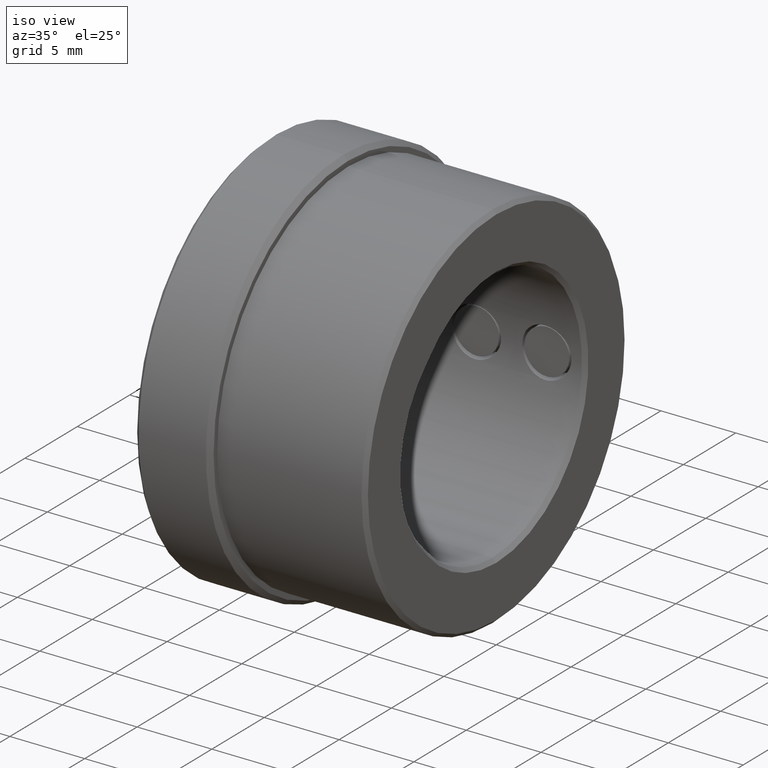
[diagram: clean part render]
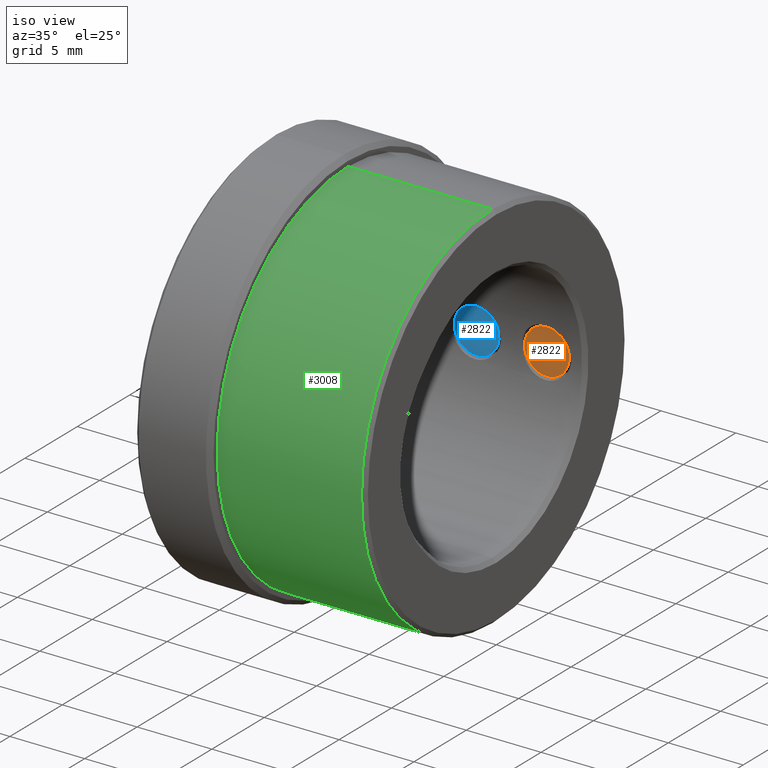
[diagram: same view with three faces highlighted in distinct colors, each labeled with its STEP entity id]
A machine part, iso view with three faces highlighted in distinct colors.
Their STEP definitions:

[orange] entity #2822 — the highlighted planar face has unit normal (0, -1, -0).
#220 = VERTEX_POINT ( 'NONE', #411 ) ;
#269 = EDGE_CURVE ( 'NONE', #4243, #220, #2232, .T. ) ;
#411 = CARTESIAN_POINT ( 'NONE',  ( 0.000000000000000000, -1.000000000000000000, 1.500000000000000222 ) ) ;
#665 = FACE_OUTER_BOUND ( 'NONE', #2574, .T. ) ;
#904 = ORIENTED_EDGE ( 'NONE', *, *, #269, .T. ) ;
#909 = DIRECTION ( 'NONE',  ( 0.000000000000000000, 0.000000000000000000, -1.000000000000000000 ) ) ;
#1053 = DIRECTION ( 'NONE',  ( 0.000000000000000000, 0.000000000000000000, -1.000000000000000000 ) ) ;
#1079 = DIRECTION ( 'NONE',  ( 0.000000000000000000, -0.000000000000000000, -1.000000000000000000 ) ) ;
#1694 = DIRECTION ( 'NONE',  ( 0.000000000000000000, -1.000000000000000000, 0.000000000000000000 ) ) ;
#1799 = CARTESIAN_POINT ( 'NONE',  ( 0.000000000000000000, -1.000000000000000000, 0.000000000000000000 ) ) ;
#1914 = EDGE_CURVE ( 'NONE', #220, #4243, #2678, .T. ) ;
#2059 = PLANE ( 'NONE',  #3816 ) ;
#2081 = AXIS2_PLACEMENT_3D ( 'NONE', #4104, #3754, #909 ) ;
#2232 = CIRCLE ( 'NONE', #2834, 1.500000000000000222 ) ;
#2574 = EDGE_LOOP ( 'NONE', ( #4126, #904 ) ) ;
#2678 = CIRCLE ( 'NONE', #2081, 1.500000000000000222 ) ;
#2822 = ADVANCED_FACE ( 'NONE', ( #665 ), #2059, .T. ) ;
#2834 = AXIS2_PLACEMENT_3D ( 'NONE', #1799, #3169, #1053 ) ;
#3169 = DIRECTION ( 'NONE',  ( 0.000000000000000000, -1.000000000000000000, 0.000000000000000000 ) ) ;
#3638 = CARTESIAN_POINT ( 'NONE',  ( 1.836970198721030181E-16, -1.000000000000000000, -1.500000000000000222 ) ) ;
#3754 = DIRECTION ( 'NONE',  ( 0.000000000000000000, -1.000000000000000000, 0.000000000000000000 ) ) ;
#3816 = AXIS2_PLACEMENT_3D ( 'NONE', #4258, #1694, #1079 ) ;
#4104 = CARTESIAN_POINT ( 'NONE',  ( 0.000000000000000000, -1.000000000000000000, 0.000000000000000000 ) ) ;
#4126 = ORIENTED_EDGE ( 'NONE', *, *, #1914, .T. ) ;
#4243 = VERTEX_POINT ( 'NONE', #3638 ) ;
#4258 = CARTESIAN_POINT ( 'NONE',  ( 0.000000000000000000, -1.000000000000000000, 0.000000000000000000 ) ) ;

[blue] entity #2822 — the highlighted planar face has unit normal (-0, -1, 0).
#220 = VERTEX_POINT ( 'NONE', #411 ) ;
#269 = EDGE_CURVE ( 'NONE', #4243, #220, #2232, .T. ) ;
#411 = CARTESIAN_POINT ( 'NONE',  ( 0.000000000000000000, -1.000000000000000000, 1.500000000000000222 ) ) ;
#665 = FACE_OUTER_BOUND ( 'NONE', #2574, .T. ) ;
#904 = ORIENTED_EDGE ( 'NONE', *, *, #269, .T. ) ;
#909 = DIRECTION ( 'NONE',  ( 0.000000000000000000, 0.000000000000000000, -1.000000000000000000 ) ) ;
#1053 = DIRECTION ( 'NONE',  ( 0.000000000000000000, 0.000000000000000000, -1.000000000000000000 ) ) ;
#1079 = DIRECTION ( 'NONE',  ( 0.000000000000000000, -0.000000000000000000, -1.000000000000000000 ) ) ;
#1694 = DIRECTION ( 'NONE',  ( 0.000000000000000000, -1.000000000000000000, 0.000000000000000000 ) ) ;
#1799 = CARTESIAN_POINT ( 'NONE',  ( 0.000000000000000000, -1.000000000000000000, 0.000000000000000000 ) ) ;
#1914 = EDGE_CURVE ( 'NONE', #220, #4243, #2678, .T. ) ;
#2059 = PLANE ( 'NONE',  #3816 ) ;
#2081 = AXIS2_PLACEMENT_3D ( 'NONE', #4104, #3754, #909 ) ;
#2232 = CIRCLE ( 'NONE', #2834, 1.500000000000000222 ) ;
#2574 = EDGE_LOOP ( 'NONE', ( #4126, #904 ) ) ;
#2678 = CIRCLE ( 'NONE', #2081, 1.500000000000000222 ) ;
#2822 = ADVANCED_FACE ( 'NONE', ( #665 ), #2059, .T. ) ;
#2834 = AXIS2_PLACEMENT_3D ( 'NONE', #1799, #3169, #1053 ) ;
#3169 = DIRECTION ( 'NONE',  ( 0.000000000000000000, -1.000000000000000000, 0.000000000000000000 ) ) ;
#3638 = CARTESIAN_POINT ( 'NONE',  ( 1.836970198721030181E-16, -1.000000000000000000, -1.500000000000000222 ) ) ;
#3754 = DIRECTION ( 'NONE',  ( 0.000000000000000000, -1.000000000000000000, 0.000000000000000000 ) ) ;
#3816 = AXIS2_PLACEMENT_3D ( 'NONE', #4258, #1694, #1079 ) ;
#4104 = CARTESIAN_POINT ( 'NONE',  ( 0.000000000000000000, -1.000000000000000000, 0.000000000000000000 ) ) ;
#4126 = ORIENTED_EDGE ( 'NONE', *, *, #1914, .T. ) ;
#4243 = VERTEX_POINT ( 'NONE', #3638 ) ;
#4258 = CARTESIAN_POINT ( 'NONE',  ( 0.000000000000000000, -1.000000000000000000, 0.000000000000000000 ) ) ;

[green] entity #3008 — the highlighted cylindrical surface (partial cylindrical patch) has radius 12.5 mm, axis along (1, 0, 0).
#16 = VERTEX_POINT ( 'NONE', #2387 ) ;
#31 = AXIS2_PLACEMENT_3D ( 'NONE', #56, #2893, #3953 ) ;
#56 = CARTESIAN_POINT ( 'NONE',  ( 5.100000000000000533, 0.000000000000000000, 0.000000000000000000 ) ) ;
#71 = DIRECTION ( 'NONE',  ( 1.000000000000000000, -0.000000000000000000, -0.000000000000000000 ) ) ;
#121 = LINE ( 'NONE', #3298, #756 ) ;
#143 = EDGE_LOOP ( 'NONE', ( #1809, #394, #592, #4359 ) ) ;
#313 = CIRCLE ( 'NONE', #976, 12.50000000000000000 ) ;
#394 = ORIENTED_EDGE ( 'NONE', *, *, #3036, .F. ) ;
#410 = CARTESIAN_POINT ( 'NONE',  ( -37.55147130033655856, 0.000000000000000000, 0.000000000000000000 ) ) ;
#550 = EDGE_CURVE ( 'NONE', #3701, #3020, #121, .T. ) ;
#592 = ORIENTED_EDGE ( 'NONE', *, *, #2053, .T. ) ;
#659 = CARTESIAN_POINT ( 'NONE',  ( 14.74999999999999289, 0.000000000000000000, 0.000000000000000000 ) ) ;
#756 = VECTOR ( 'NONE', #71, 1000.000000000000000 ) ;
#976 = AXIS2_PLACEMENT_3D ( 'NONE', #659, #1459, #2777 ) ;
#1190 = FACE_OUTER_BOUND ( 'NONE', #143, .T. ) ;
#1450 = CYLINDRICAL_SURFACE ( 'NONE', #3887, 12.50000000000000000 ) ;
#1459 = DIRECTION ( 'NONE',  ( -1.000000000000000000, 0.000000000000000000, 0.000000000000000000 ) ) ;
#1487 = EDGE_CURVE ( 'NONE', #1725, #3020, #313, .T. ) ;
#1725 = VERTEX_POINT ( 'NONE', #1752 ) ;
#1752 = CARTESIAN_POINT ( 'NONE',  ( 14.74999999999999289, 0.000000000000000000, -12.50000000000000000 ) ) ;
#1809 = ORIENTED_EDGE ( 'NONE', *, *, #550, .F. ) ;
#1974 = CARTESIAN_POINT ( 'NONE',  ( 5.100000000000000533, 1.530808498934191521E-15, 12.50000000000000000 ) ) ;
#2053 = EDGE_CURVE ( 'NONE', #16, #1725, #2744, .T. ) ;
#2259 = CIRCLE ( 'NONE', #31, 12.50000000000000000 ) ;
#2330 = VECTOR ( 'NONE', #3220, 1000.000000000000000 ) ;
#2387 = CARTESIAN_POINT ( 'NONE',  ( 5.100000000000000533, 0.000000000000000000, -12.50000000000000000 ) ) ;
#2615 = DIRECTION ( 'NONE',  ( 0.000000000000000000, 0.000000000000000000, -1.000000000000000000 ) ) ;
#2744 = LINE ( 'NONE', #4154, #2330 ) ;
#2777 = DIRECTION ( 'NONE',  ( 0.000000000000000000, 0.000000000000000000, -1.000000000000000000 ) ) ;
#2868 = DIRECTION ( 'NONE',  ( 1.000000000000000000, -0.000000000000000000, -0.000000000000000000 ) ) ;
#2893 = DIRECTION ( 'NONE',  ( -1.000000000000000000, -0.000000000000000000, -0.000000000000000000 ) ) ;
#3008 = ADVANCED_FACE ( 'NONE', ( #1190 ), #1450, .T. ) ;
#3020 = VERTEX_POINT ( 'NONE', #4280 ) ;
#3036 = EDGE_CURVE ( 'NONE', #16, #3701, #2259, .T. ) ;
#3220 = DIRECTION ( 'NONE',  ( 1.000000000000000000, -0.000000000000000000, -0.000000000000000000 ) ) ;
#3298 = CARTESIAN_POINT ( 'NONE',  ( -37.55147130033655856, 1.530808498934191521E-15, 12.50000000000000000 ) ) ;
#3701 = VERTEX_POINT ( 'NONE', #1974 ) ;
#3887 = AXIS2_PLACEMENT_3D ( 'NONE', #410, #2868, #2615 ) ;
#3953 = DIRECTION ( 'NONE',  ( 0.000000000000000000, 0.000000000000000000, -1.000000000000000000 ) ) ;
#4154 = CARTESIAN_POINT ( 'NONE',  ( -37.55147130033655856, 0.000000000000000000, -12.50000000000000000 ) ) ;
#4280 = CARTESIAN_POINT ( 'NONE',  ( 14.74999999999999289, 1.530808498934191521E-15, 12.50000000000000000 ) ) ;
#4359 = ORIENTED_EDGE ( 'NONE', *, *, #1487, .T. ) ;